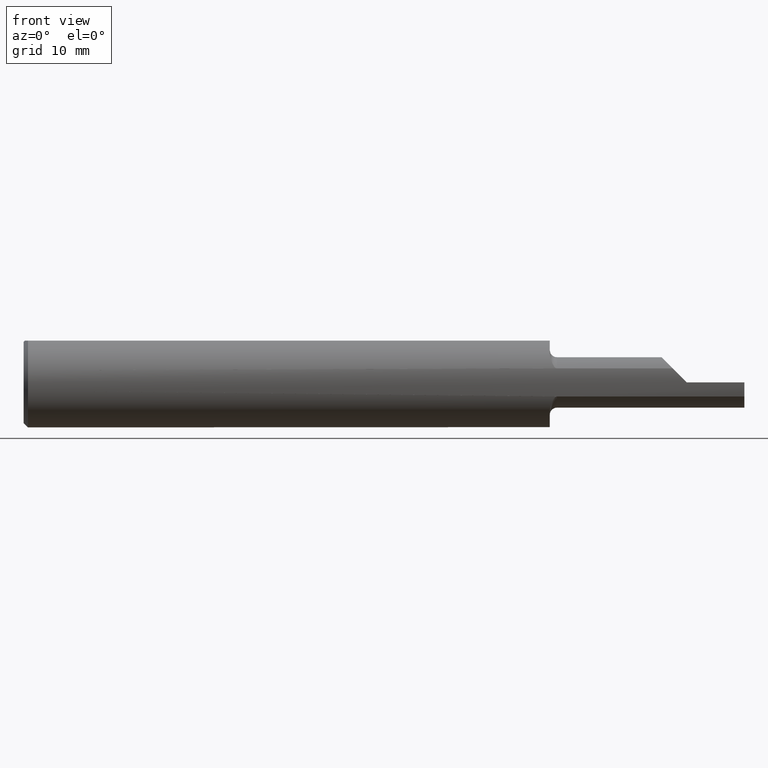
[diagram: clean part render]
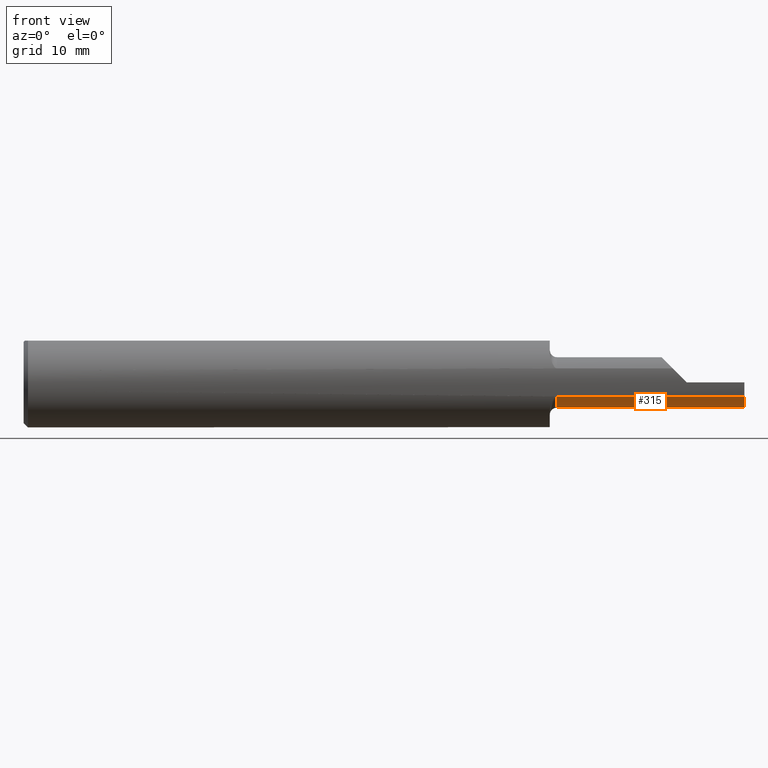
[diagram: same view with one face highlighted and labeled with its STEP entity id]
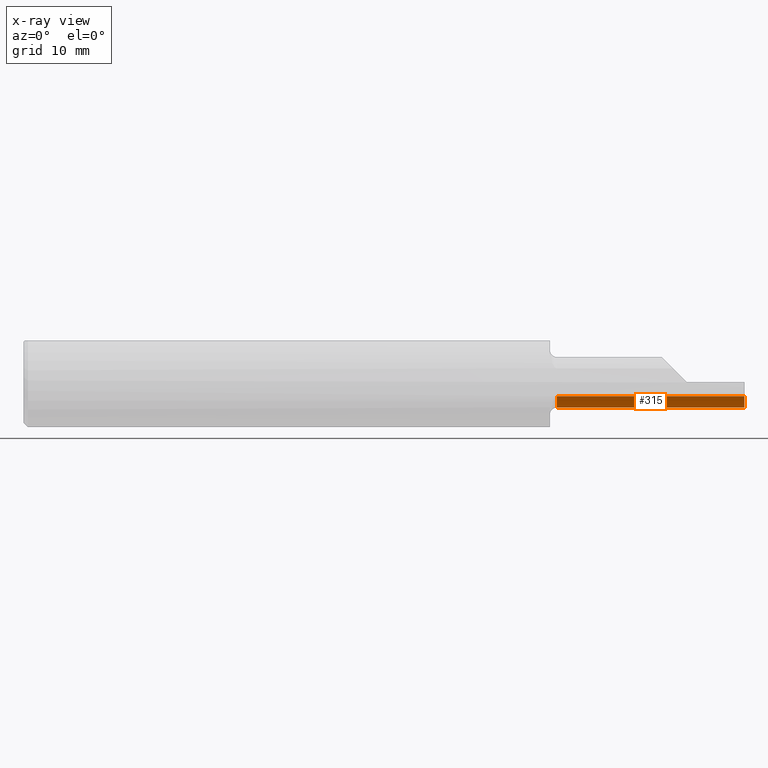
[diagram: x-ray of the same camera — body ghosted, the highlighted face saturated]
A machine part, front view. The second image highlights one B-rep face of the part: STEP entity #315.
The next image is the same camera in x-ray: the body ghosted, the highlighted face saturated — about 0% of this face is hidden behind the body in this view.
In plain terms, the highlighted cylindrical surface (edge-blend (fillet) strip) has radius 2.2225 mm, axis along (-1, -0, -0).
Its self-contained STEP definition (entity closure, byte-faithful):
#2 = CARTESIAN_POINT ( 'NONE',  ( 1.849999999999999867, -0.1483222222222221054, -0.04865930943880881349 ) ) ;
#48 = VERTEX_POINT ( 'NONE', #754 ) ;
#51 = CARTESIAN_POINT ( 'NONE',  ( 2.500000000000000000, -0.07999379951320567672, -0.08738961337503305116 ) ) ;
#70 = CARTESIAN_POINT ( 'NONE',  ( 1.824999999999999956, -0.07560000000000000053, -0.08750000000000002220 ) ) ;
#71 = EDGE_CURVE ( 'NONE', #579, #542, #318, .T. ) ;
#72 = CIRCLE ( 'NONE', #291, 0.08750000000000002220 ) ;
#113 = DIRECTION ( 'NONE',  ( -1.000000000000000000, -0.000000000000000000, -0.000000000000000000 ) ) ;
#116 = VECTOR ( 'NONE', #113, 39.37007874015748143 ) ;
#117 = CARTESIAN_POINT ( 'NONE',  ( 2.499208634579223709, -0.07706537013471990993, -0.08750000000000002220 ) ) ;
#151 = ORIENTED_EDGE ( 'NONE', *, *, #71, .F. ) ;
#159 = AXIS2_PLACEMENT_3D ( 'NONE', #483, #499, #622 ) ;
#161 = DIRECTION ( 'NONE',  ( 1.000000000000000000, 0.000000000000000000, 0.000000000000000000 ) ) ;
#194 =( BOUNDED_CURVE ( )  B_SPLINE_CURVE ( 3, ( #773, #117, #845, #196 ),
 .UNSPECIFIED., .F., .T. ) 
 B_SPLINE_CURVE_WITH_KNOTS ( ( 4, 4 ),
 ( 0.6981317007977302369, 0.7483676794121204567 ),
 .UNSPECIFIED. ) 
 CURVE ( )  GEOMETRIC_REPRESENTATION_ITEM ( )  RATIONAL_B_SPLINE_CURVE ( ( 1.000000000000000000, 0.9997897065944802986, 0.9997897065944802986, 1.000000000000000000 ) ) 
 REPRESENTATION_ITEM ( '' )  );
#196 = CARTESIAN_POINT ( 'NONE',  ( 2.500000000000000000, -0.07999379951320567672, -0.08738961337503305116 ) ) ;
#227 = VERTEX_POINT ( 'NONE', #51 ) ;
#254 = CARTESIAN_POINT ( 'NONE',  ( 2.442499999999999893, -0.07560000000000001441, -0.08750000000000006384 ) ) ;
#265 = VERTEX_POINT ( 'NONE', #632 ) ;
#267 = LINE ( 'NONE', #410, #116 ) ;
#291 = AXIS2_PLACEMENT_3D ( 'NONE', #355, #161, #460 ) ;
#312 = VERTEX_POINT ( 'NONE', #2 ) ;
#315 = ADVANCED_FACE ( 'NONE', ( #886 ), #800, .T. ) ;
#316 = EDGE_CURVE ( 'NONE', #542, #265, #949, .T. ) ;
#318 = LINE ( 'NONE', #325, #337 ) ;
#325 = CARTESIAN_POINT ( 'NONE',  ( 2.500000000000000000, -0.07560000000000001441, -0.08750000000000006384 ) ) ;
#337 = VECTOR ( 'NONE', #541, 39.37007874015748143 ) ;
#343 = CARTESIAN_POINT ( 'NONE',  ( 2.498829664094795788, -0.07560000000000001441, -0.08750000000000006384 ) ) ;
#355 = CARTESIAN_POINT ( 'NONE',  ( 1.849999999999999867, -0.07560000000000001441, 0.000000000000000000 ) ) ;
#367 = DIRECTION ( 'NONE',  ( 0.000000000000000000, 0.000000000000000000, 1.000000000000000000 ) ) ;
#372 = ORIENTED_EDGE ( 'NONE', *, *, #657, .T. ) ;
#410 = CARTESIAN_POINT ( 'NONE',  ( 2.133750000000000036, -0.1483222222222221054, -0.04865930943880881349 ) ) ;
#433 = ORIENTED_EDGE ( 'NONE', *, *, #558, .T. ) ;
#460 = DIRECTION ( 'NONE',  ( 0.000000000000000000, 0.000000000000000000, -1.000000000000000000 ) ) ;
#483 = CARTESIAN_POINT ( 'NONE',  ( 2.500000000000000000, -0.07560000000000001441, 0.000000000000000000 ) ) ;
#499 = DIRECTION ( 'NONE',  ( 1.000000000000000000, -0.000000000000000000, -0.000000000000000000 ) ) ;
#504 = DIRECTION ( 'NONE',  ( -1.000000000000000000, -0.000000000000000000, -0.000000000000000000 ) ) ;
#519 = CARTESIAN_POINT ( 'NONE',  ( 1.824999999999999956, -0.07560000000000001441, 0.000000000000000000 ) ) ;
#533 = CIRCLE ( 'NONE', #159, 0.08750000000000003608 ) ;
#541 = DIRECTION ( 'NONE',  ( -1.000000000000000000, -0.000000000000000000, -0.000000000000000000 ) ) ;
#542 = VERTEX_POINT ( 'NONE', #254 ) ;
#558 = EDGE_CURVE ( 'NONE', #48, #312, #267, .T. ) ;
#576 = EDGE_LOOP ( 'NONE', ( #592, #151, #372, #844, #433, #603 ) ) ;
#579 = VERTEX_POINT ( 'NONE', #343 ) ;
#592 = ORIENTED_EDGE ( 'NONE', *, *, #316, .F. ) ;
#603 = ORIENTED_EDGE ( 'NONE', *, *, #854, .T. ) ;
#622 = DIRECTION ( 'NONE',  ( 0.000000000000000000, 0.000000000000000000, 1.000000000000000000 ) ) ;
#632 = CARTESIAN_POINT ( 'NONE',  ( 1.849999999999999867, -0.07560000000000000053, -0.08750000000000002220 ) ) ;
#653 = EDGE_CURVE ( 'NONE', #48, #227, #533, .T. ) ;
#657 = EDGE_CURVE ( 'NONE', #579, #227, #194, .T. ) ;
#686 = AXIS2_PLACEMENT_3D ( 'NONE', #519, #721, #367 ) ;
#721 = DIRECTION ( 'NONE',  ( -1.000000000000000000, -0.000000000000000000, -0.000000000000000000 ) ) ;
#754 = CARTESIAN_POINT ( 'NONE',  ( 2.500000000000000000, -0.1483222222222221054, -0.04865930943880888288 ) ) ;
#773 = CARTESIAN_POINT ( 'NONE',  ( 2.498829664094795788, -0.07560000000000001441, -0.08750000000000006384 ) ) ;
#779 = VECTOR ( 'NONE', #504, 39.37007874015748143 ) ;
#800 = CYLINDRICAL_SURFACE ( 'NONE', #686, 0.08750000000000002220 ) ;
#844 = ORIENTED_EDGE ( 'NONE', *, *, #653, .F. ) ;
#845 = CARTESIAN_POINT ( 'NONE',  ( 2.499598828602855427, -0.07853027803292579601, -0.08746319671885703639 ) ) ;
#854 = EDGE_CURVE ( 'NONE', #312, #265, #72, .T. ) ;
#886 = FACE_OUTER_BOUND ( 'NONE', #576, .T. ) ;
#949 = LINE ( 'NONE', #70, #779 ) ;